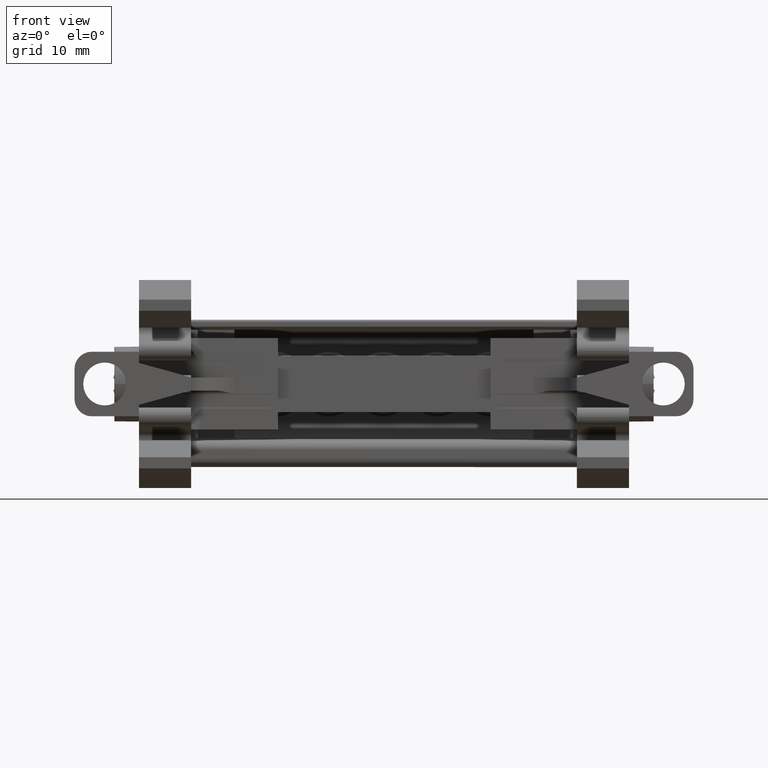
[diagram: clean part render]
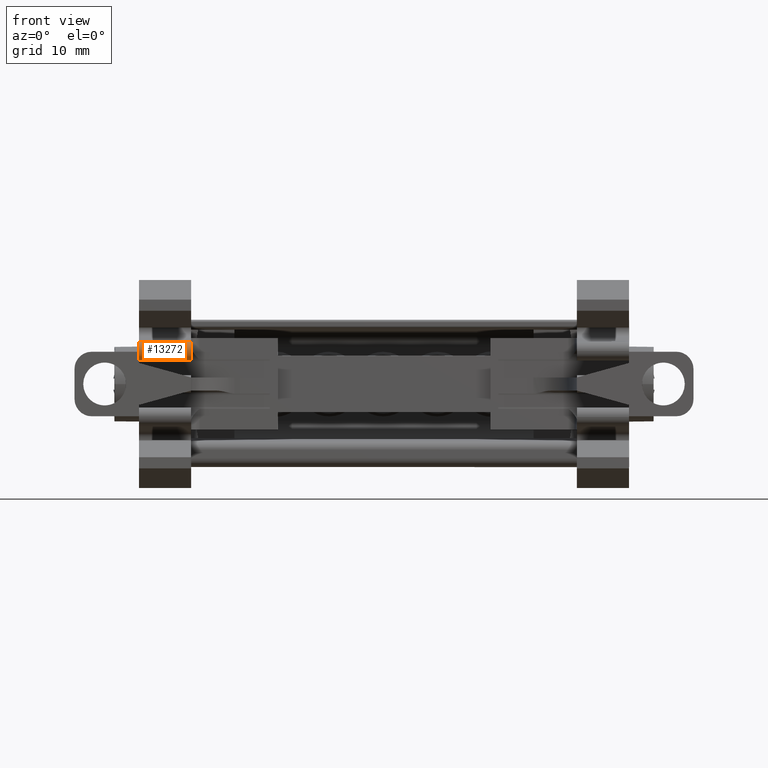
[diagram: same view with one face highlighted and labeled with its STEP entity id]
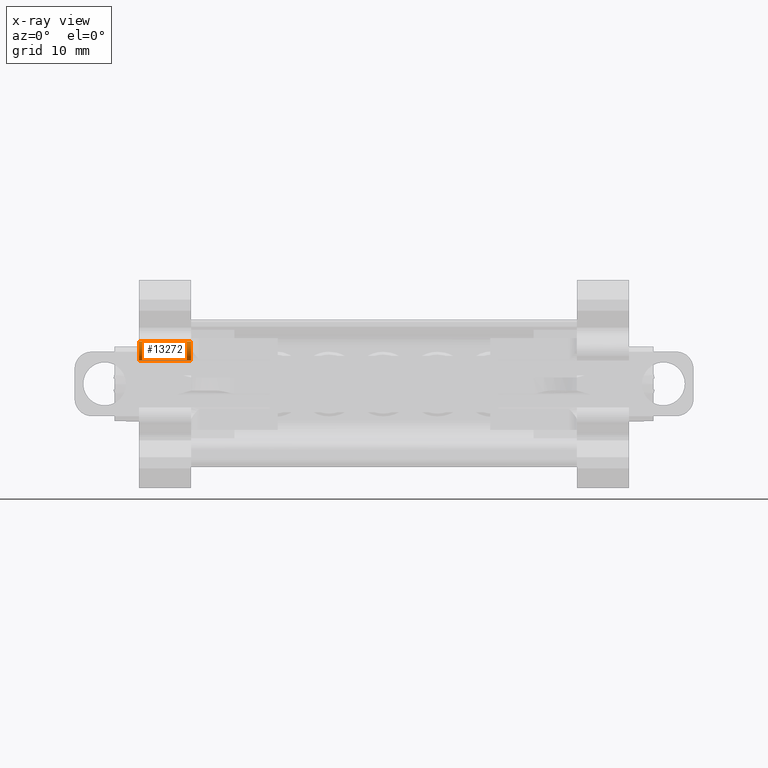
[diagram: x-ray of the same camera — body ghosted, the highlighted face saturated]
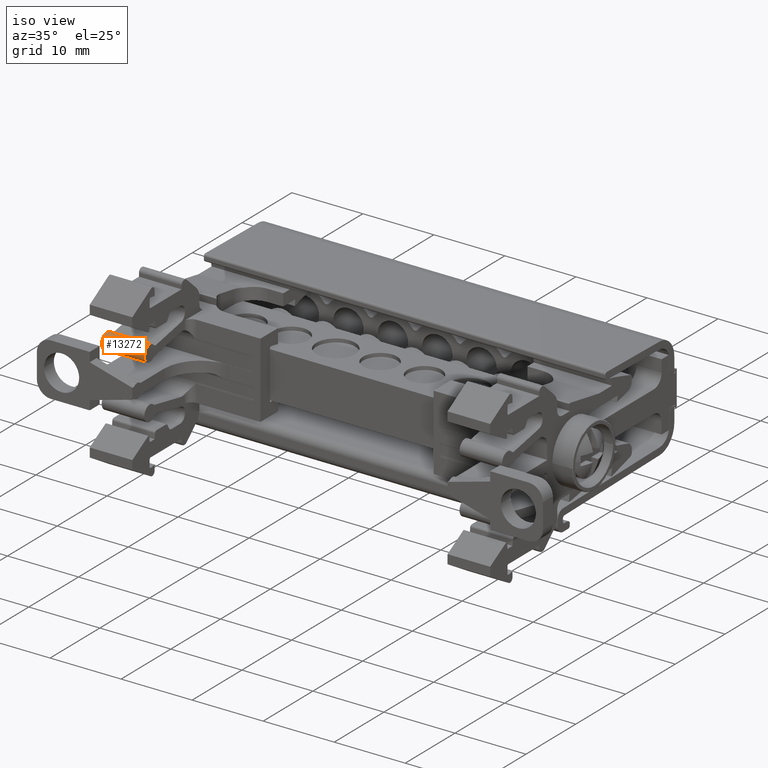
[diagram: same view with one face highlighted and labeled with its STEP entity id]
A machine part, front view. The second image highlights one B-rep face of the part: STEP entity #13272.
The next image is the same camera in x-ray: the body ghosted, the highlighted face saturated — about 0% of this face is hidden behind the body in this view.
A second angle (iso view) of the same face is appended — the face is thin or edge-on in the first view.
In plain terms, the highlighted cylindrical surface (edge-blend (fillet) strip) has radius 1.1 mm, axis along (1, 0, 0).
Its self-contained STEP definition (entity closure, byte-faithful):
#579 = DIRECTION ( 'NONE',  ( -1.261617073391244300E-014, 1.000000000000000000, 0.0000000000000000000 ) ) ;
#594 = CYLINDRICAL_SURFACE ( 'NONE', #9246, 1.100000000040485300 ) ;
#597 = CARTESIAN_POINT ( 'NONE',  ( -83.27539649368617300, -55.28401611767198900, 99.82901725408531500 ) ) ;
#599 = DIRECTION ( 'NONE',  ( 1.000000000000000000, 1.122594556886346500E-014, 2.537798099621991900E-015 ) ) ;
#609 = FACE_OUTER_BOUND ( 'NONE', #18680, .T. ) ;
#1534 = CARTESIAN_POINT ( 'NONE',  ( -83.27539649368617300, -54.70076571390639900, 98.87157990167801800 ) ) ;
#1537 = CARTESIAN_POINT ( 'NONE',  ( -83.27539649368614500, -54.88971780615437300, 98.77967751248739600 ) ) ;
#1539 = CARTESIAN_POINT ( 'NONE',  ( -83.27539649368615900, -55.15707209049539700, 98.73497231684113700 ) ) ;
#1541 = CARTESIAN_POINT ( 'NONE',  ( -83.27539649368614500, -55.23764453201600600, 98.72757692152326600 ) ) ;
#1545 = CARTESIAN_POINT ( 'NONE',  ( -83.27539649368613100, -55.31876620786403000, 98.72920577126953400 ) ) ;
#1546 = CARTESIAN_POINT ( 'NONE',  ( -83.27539649368614500, -55.37296937716880800, 98.73229705889238500 ) ) ;
#1547 = CARTESIAN_POINT ( 'NONE',  ( -83.27539649368615900, -55.40162193594184700, 98.73503974435684000 ) ) ;
#1548 = CARTESIAN_POINT ( 'NONE',  ( -83.27539649368617300, -55.53029037914624400, 98.75182316358909400 ) ) ;
#1550 = CARTESIAN_POINT ( 'NONE',  ( -83.27539649368613100, -55.63117308677879400, 98.78018194761669700 ) ) ;
#1552 = CARTESIAN_POINT ( 'NONE',  ( -83.27539649368615900, -55.77382842760265900, 98.84266932193112600 ) ) ;
#1573 = CARTESIAN_POINT ( 'NONE',  ( -83.27539649368617300, -54.53964225596702400, 99.01913605656339700 ) ) ;
#1578 = CARTESIAN_POINT ( 'NONE',  ( -83.27539649368617300, -56.07322328046993200, 99.05498144073605700 ) ) ;
#1583 = CARTESIAN_POINT ( 'NONE',  ( -83.27539649368620200, -56.14564796153348400, 99.13682744681293000 ) ) ;
#1586 = CARTESIAN_POINT ( 'NONE',  ( -83.27539649368617300, -56.27386789483006200, 99.34371887247756700 ) ) ;
#1590 = CARTESIAN_POINT ( 'NONE',  ( -83.27539649368614500, -55.81958072194930800, 98.86671851729612100 ) ) ;
#1594 = CARTESIAN_POINT ( 'NONE',  ( -83.27539649368617300, -56.38382628667992700, 99.72350913538313900 ) ) ;
#1603 = CARTESIAN_POINT ( 'NONE',  ( -83.27539649368614500, -55.94837860652512500, 98.95069296899710300 ) ) ;
#1607 = CARTESIAN_POINT ( 'NONE',  ( -83.27539649368614500, -56.38401611771247700, 99.82901725408532900 ) ) ;
#1611 = CARTESIAN_POINT ( 'NONE',  ( -83.27539649368618800, -56.23470206167176900, 99.27291894414092600 ) ) ;
#1614 = CARTESIAN_POINT ( 'NONE',  ( -83.27539649368617300, -56.30499190262213500, 99.41865007032323800 ) ) ;
#1621 = CARTESIAN_POINT ( 'NONE',  ( -83.27539649368615900, -55.90748633878665400, 98.92125704921288300 ) ) ;
#1622 = CARTESIAN_POINT ( 'NONE',  ( -83.27539649368618800, -56.36923285631425500, 99.62109389859989500 ) ) ;
#1623 = CARTESIAN_POINT ( 'NONE',  ( -83.27539649368618800, -56.33298656919087200, 99.49694095501949700 ) ) ;
#1627 = CARTESIAN_POINT ( 'NONE',  ( -83.27539649368617300, -56.32395416884653400, 99.46952226211125500 ) ) ;
#2995 = CARTESIAN_POINT ( 'NONE',  ( -77.27539649368615900, -54.46873406097365200, 100.5674718350277900 ) ) ;
#2997 = CARTESIAN_POINT ( 'NONE',  ( -83.27539649368617300, -54.53964225596702400, 99.01913605656339700 ) ) ;
#3041 = CARTESIAN_POINT ( 'NONE',  ( -77.27539649368610200, -56.38401611771240600, 99.82901725408532900 ) ) ;
#3068 = CARTESIAN_POINT ( 'NONE',  ( -83.27539649368617300, -54.46873406097372300, 100.5674718350277600 ) ) ;
#3099 = CARTESIAN_POINT ( 'NONE',  ( -77.27539649368614500, -54.53964225596695300, 99.01913605656342600 ) ) ;
#6077 = EDGE_CURVE ( 'NONE', #24538, #24477, #17259, .T. ) ;
#6173 = EDGE_CURVE ( 'NONE', #24477, #24514, #17268, .T. ) ;
#6394 = EDGE_CURVE ( 'NONE', #18215, #24523, #17413, .T. ) ;
#6445 = EDGE_CURVE ( 'NONE', #24478, #18215, #17416, .T. ) ;
#9246 = AXIS2_PLACEMENT_3D ( 'NONE', #597, #599, #579 ) ;
#9589 = VECTOR ( 'NONE', #32057, 1000.000000000000000 ) ;
#9611 = VECTOR ( 'NONE', #31999, 1000.000000000000000 ) ;
#13272 = ADVANCED_FACE ( 'NONE', ( #609 ), #594, .T. ) ;
#14040 = ORIENTED_EDGE ( 'NONE', *, *, #6077, .T. ) ;
#14077 = ORIENTED_EDGE ( 'NONE', *, *, #15004, .T. ) ;
#14083 = ORIENTED_EDGE ( 'NONE', *, *, #6445, .F. ) ;
#14112 = ORIENTED_EDGE ( 'NONE', *, *, #6173, .T. ) ;
#14141 = ORIENTED_EDGE ( 'NONE', *, *, #15026, .T. ) ;
#14143 = ORIENTED_EDGE ( 'NONE', *, *, #6394, .F. ) ;
#15004 = EDGE_CURVE ( 'NONE', #24478, #24538, #31954, .T. ) ;
#15026 = EDGE_CURVE ( 'NONE', #24514, #24523, #32066, .T. ) ;
#17259 = B_SPLINE_CURVE_WITH_KNOTS ( 'NONE', 3,
 ( #23280, #23312, #23315, #23313, #23303, #23306, #23290, #23316, #23308, #23284 ),
 .UNSPECIFIED., .F., .F.,
 ( 4, 2, 2, 2, 4 ),
 ( 0.0000000000000000000, 0.2500000000000000000, 0.5000000000000000000, 0.7500000000000000000, 1.000000000000000000 ),
 .UNSPECIFIED. ) ;
#17268 = B_SPLINE_CURVE_WITH_KNOTS ( 'NONE', 3,
 ( #22481, #22482, #22538, #22534, #22518, #22496, #22535, #22492, #22527, #22532 ),
 .UNSPECIFIED., .F., .F.,
 ( 4, 2, 2, 2, 4 ),
 ( 0.0000000000000000000, 0.2500000000000000000, 0.5000000000000000000, 0.7500000000000000000, 1.000000000000000000 ),
 .UNSPECIFIED. ) ;
#17413 = B_SPLINE_CURVE_WITH_KNOTS ( 'NONE', 3,
 ( #26348, #26345, #26334, #26335, #26316, #26349, #26340, #26364, #26355, #26360, #26346, #26356, #26309, #26362, #26322, #26337, #26352, #26319, #26341, #26310, #26323, #26326, #26313, #26354, #26342, #26361, #26324, #26343, #26314 ),
 .UNSPECIFIED., .F., .F.,
 ( 4, 1, 2, 2, 2, 1, 2, 2, 2, 2, 2, 2, 1, 2, 2, 4 ),
 ( 0.0000000000000000000, 0.06249999999996035100, 0.09374999999994909600, 0.1249999999999378600, 0.2499999999999200600, 0.3124999999999153500, 0.3437499999999186200, 0.3749999999999218400, 0.4999999999999448200, 0.5624999999999533700, 0.6249999999999619200, 0.7499999999999866800, 0.8124999999999973400, 0.8437499999999962300, 0.8749999999999950000, 1.000000000000000000 ),
 .UNSPECIFIED. ) ;
#17416 = B_SPLINE_CURVE_WITH_KNOTS ( 'NONE', 3,
 ( #1573, #1534, #1537, #1539, #1541, #1545, #1546, #1547, #1548, #1550, #1552, #1590, #1621, #1603, #1578, #1583, #1611, #1586, #1614, #1627, #1623, #1622, #1594, #1607 ),
 .UNSPECIFIED., .F., .F.,
 ( 4, 2, 1, 2, 2, 2, 2, 2, 2, 1, 2, 2, 4 ),
 ( 0.0000000000000000000, 0.2500000000000261500, 0.3125000000000313600, 0.3437500000000339700, 0.3750000000000365300, 0.5000000000000243100, 0.5625000000000182100, 0.6250000000000121000, 0.7500000000000099900, 0.8125000000000178700, 0.8437500000000145400, 0.8750000000000111000, 1.000000000000000000 ),
 .UNSPECIFIED. ) ;
#18215 = VERTEX_POINT ( 'NONE', #27315 ) ;
#18680 = EDGE_LOOP ( 'NONE', ( #14077, #14040, #14112, #14141, #14143, #14083 ) ) ;
#22481 = CARTESIAN_POINT ( 'NONE',  ( -77.27539649368610200, -56.38401611771240600, 99.82901725408532900 ) ) ;
#22482 = CARTESIAN_POINT ( 'NONE',  ( -77.27539649368611700, -56.38401611771239900, 100.0495306937668300 ) ) ;
#22492 = CARTESIAN_POINT ( 'NONE',  ( -77.27539649368613100, -54.81506179556732400, 100.8481875151058300 ) ) ;
#22496 = CARTESIAN_POINT ( 'NONE',  ( -77.27539649368613100, -55.47398669503494500, 100.9347013667077300 ) ) ;
#22518 = CARTESIAN_POINT ( 'NONE',  ( -77.27539649368614500, -55.88548693130127300, 100.7760436726826800 ) ) ;
#22527 = CARTESIAN_POINT ( 'NONE',  ( -77.27539649368614500, -54.61676966068834100, 100.7309087901427900 ) ) ;
#22532 = CARTESIAN_POINT ( 'NONE',  ( -77.27539649368615900, -54.46873406097365200, 100.5674718350277900 ) ) ;
#22534 = CARTESIAN_POINT ( 'NONE',  ( -77.27539649368610200, -56.06624869350876800, 100.6332177107308600 ) ) ;
#22535 = CARTESIAN_POINT ( 'NONE',  ( -77.27539649368614500, -55.24413005218361400, 100.9501931006629600 ) ) ;
#22538 = CARTESIAN_POINT ( 'NONE',  ( -77.27539649368613100, -56.31578065602842300, 100.2695715805415100 ) ) ;
#23280 = CARTESIAN_POINT ( 'NONE',  ( -77.27539649368614500, -54.53964225596695300, 99.01913605656342600 ) ) ;
#23284 = CARTESIAN_POINT ( 'NONE',  ( -77.27539649368610200, -56.38401611771240600, 99.82901725408532900 ) ) ;
#23290 = CARTESIAN_POINT ( 'NONE',  ( -77.27539649368614500, -56.08903178677817200, 99.04994982087941900 ) ) ;
#23303 = CARTESIAN_POINT ( 'NONE',  ( -77.27539649368614500, -55.53205326785295200, 98.73655495948712300 ) ) ;
#23306 = CARTESIAN_POINT ( 'NONE',  ( -77.27539649368613100, -55.92050002680319000, 98.90712543483230900 ) ) ;
#23308 = CARTESIAN_POINT ( 'NONE',  ( -77.27539649368614500, -56.38401611771240600, 99.61689395762876100 ) ) ;
#23312 = CARTESIAN_POINT ( 'NONE',  ( -77.27539649368614500, -54.69581922810352400, 98.87559147716780200 ) ) ;
#23313 = CARTESIAN_POINT ( 'NONE',  ( -77.27539649368614500, -55.31285197531587300, 98.70912226512312800 ) ) ;
#23315 = CARTESIAN_POINT ( 'NONE',  ( -77.27539649368615900, -54.89435049193851800, 98.77870444681767000 ) ) ;
#23316 = CARTESIAN_POINT ( 'NONE',  ( -77.27539649368613100, -56.32100293647318500, 99.40516040251738200 ) ) ;
#24477 = VERTEX_POINT ( 'NONE', #3041 ) ;
#24478 = VERTEX_POINT ( 'NONE', #2997 ) ;
#24514 = VERTEX_POINT ( 'NONE', #2995 ) ;
#24523 = VERTEX_POINT ( 'NONE', #3068 ) ;
#24538 = VERTEX_POINT ( 'NONE', #3099 ) ;
#26309 = CARTESIAN_POINT ( 'NONE',  ( -83.27539649368618800, -55.98119473772709400, 100.6802562159383000 ) ) ;
#26310 = CARTESIAN_POINT ( 'NONE',  ( -83.27539649368617300, -55.25291339595573700, 100.9344725942839300 ) ) ;
#26313 = CARTESIAN_POINT ( 'NONE',  ( -83.27539649368618800, -54.89437995876261300, 100.8605056997480700 ) ) ;
#26314 = CARTESIAN_POINT ( 'NONE',  ( -83.27539649368617300, -54.46873406097372300, 100.5674718350277600 ) ) ;
#26316 = CARTESIAN_POINT ( 'NONE',  ( -83.27539649368617300, -56.35153440837135000, 100.0955898954399000 ) ) ;
#26319 = CARTESIAN_POINT ( 'NONE',  ( -83.27539649368617300, -55.47344364776450500, 100.9139539347480500 ) ) ;
#26322 = CARTESIAN_POINT ( 'NONE',  ( -83.27539649368618800, -55.78028235765636100, 100.8164939715500900 ) ) ;
#26323 = CARTESIAN_POINT ( 'NONE',  ( -83.27539649368617300, -55.13953880737250300, 100.9252166405075400 ) ) ;
#26324 = CARTESIAN_POINT ( 'NONE',  ( -83.27539649368618800, -54.62532929615688500, 100.7166611885066100 ) ) ;
#26326 = CARTESIAN_POINT ( 'NONE',  ( -83.27539649368618800, -54.97462448212692700, 100.8861771415727900 ) ) ;
#26334 = CARTESIAN_POINT ( 'NONE',  ( -83.27539649368615900, -56.37794970387491800, 99.96404458172453600 ) ) ;
#26335 = CARTESIAN_POINT ( 'NONE',  ( -83.27539649368614500, -56.36326331981083400, 100.0431707421779500 ) ) ;
#26337 = CARTESIAN_POINT ( 'NONE',  ( -83.27539649368617300, -55.62946404092410500, 100.8748117937677600 ) ) ;
#26340 = CARTESIAN_POINT ( 'NONE',  ( -83.27539649368614500, -56.30427241654685100, 100.2557208753734800 ) ) ;
#26341 = CARTESIAN_POINT ( 'NONE',  ( -83.27539649368615900, -55.42196609643918500, 100.9217434965993300 ) ) ;
#26342 = CARTESIAN_POINT ( 'NONE',  ( -83.27539649368618800, -54.76690823105428100, 100.8002901683609900 ) ) ;
#26343 = CARTESIAN_POINT ( 'NONE',  ( -83.27539649368617300, -54.54241785399749900, 100.6485192097972100 ) ) ;
#26345 = CARTESIAN_POINT ( 'NONE',  ( -83.27539649368617300, -56.38391513865357000, 99.88342612958948100 ) ) ;
#26346 = CARTESIAN_POINT ( 'NONE',  ( -83.27539649368617300, -56.04604027594071900, 100.6228621309573700 ) ) ;
#26348 = CARTESIAN_POINT ( 'NONE',  ( -83.27539649368614500, -56.38401611771247700, 99.82901725408532900 ) ) ;
#26349 = CARTESIAN_POINT ( 'NONE',  ( -83.27539649368618800, -56.34505503815921700, 100.1204593038332100 ) ) ;
#26352 = CARTESIAN_POINT ( 'NONE',  ( -83.27539649368615900, -55.57815085339454700, 100.8904159315928400 ) ) ;
#26354 = CARTESIAN_POINT ( 'NONE',  ( -83.27539649368620200, -54.81745439428592400, 100.8256067193873000 ) ) ;
#26355 = CARTESIAN_POINT ( 'NONE',  ( -83.27539649368620200, -56.15909688214679100, 100.4980044636539400 ) ) ;
#26356 = CARTESIAN_POINT ( 'NONE',  ( -83.27539649368618800, -56.00423492426721600, 100.6609166422609300 ) ) ;
#26360 = CARTESIAN_POINT ( 'NONE',  ( -83.27539649368618800, -56.10627641368807900, 100.5636415373235200 ) ) ;
#26361 = CARTESIAN_POINT ( 'NONE',  ( -83.27539649368617300, -54.74050316027561500, 100.7857069168183700 ) ) ;
#26362 = CARTESIAN_POINT ( 'NONE',  ( -83.27539649368617300, -55.87500946324571100, 100.7631367706760000 ) ) ;
#26364 = CARTESIAN_POINT ( 'NONE',  ( -83.27539649368617300, -56.25485026001256000, 100.3581750096003600 ) ) ;
#27315 = CARTESIAN_POINT ( 'NONE',  ( -83.27539649368614500, -56.38401611771247700, 99.82901725408532900 ) ) ;
#31954 = LINE ( 'NONE', #31964, #9611 ) ;
#31964 = CARTESIAN_POINT ( 'NONE',  ( -83.27539649368617300, -54.53964225596703100, 99.01913605656341100 ) ) ;
#31999 = DIRECTION ( 'NONE',  ( 1.000000000000000000, 1.122594556886346500E-014, 2.537798099621991900E-015 ) ) ;
#32057 = DIRECTION ( 'NONE',  ( -1.000000000000000000, -1.122594556886346500E-014, -2.537798099621991900E-015 ) ) ;
#32066 = LINE ( 'NONE', #32075, #9589 ) ;
#32075 = CARTESIAN_POINT ( 'NONE',  ( -83.27539649368618800, -54.46873406097371600, 100.5674718350277700 ) ) ;